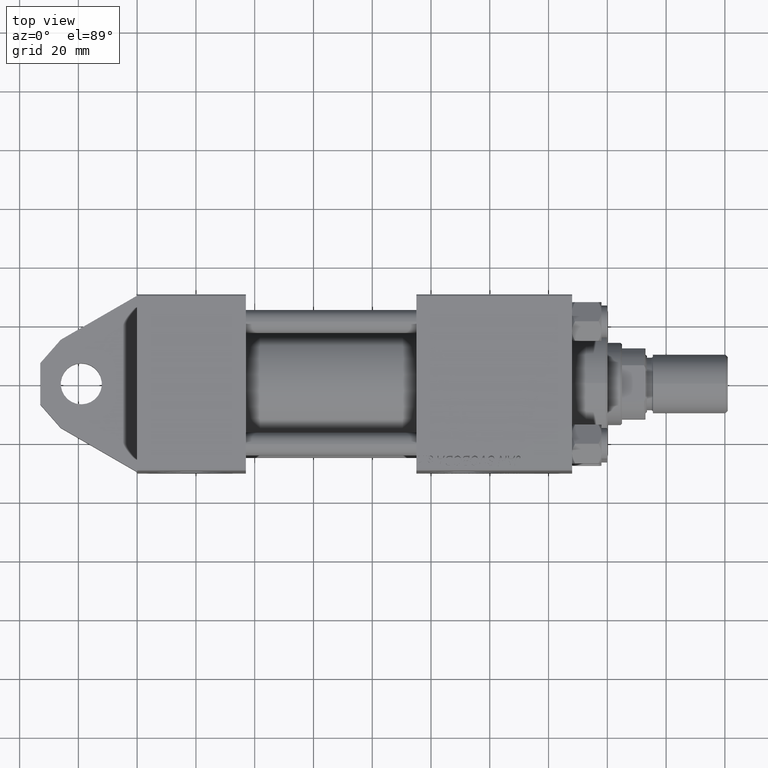
[diagram: clean part render]
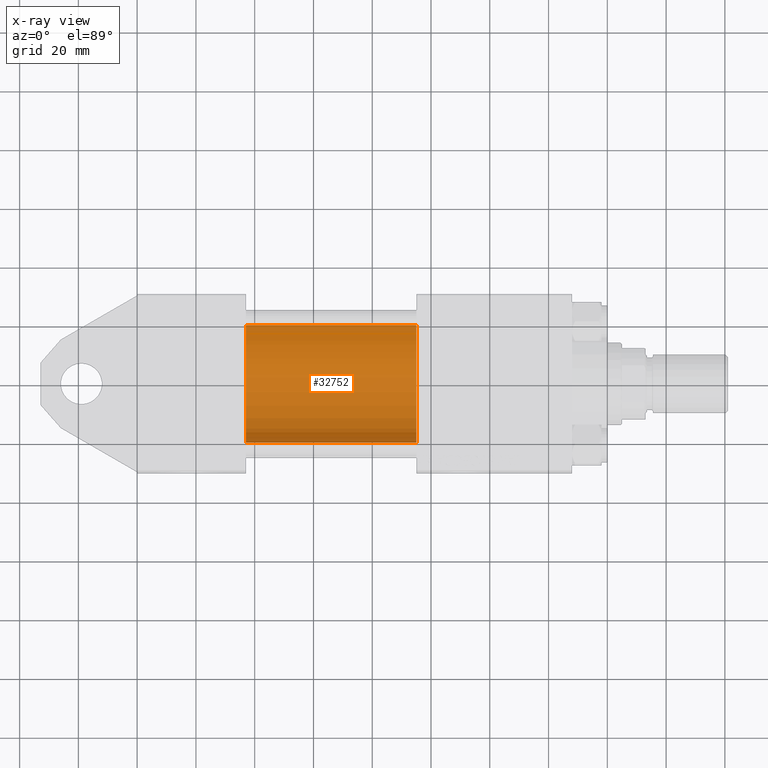
[diagram: x-ray — body ghosted, one internal face saturated and labeled with its STEP entity id]
A machine part, top view, then the same camera in x-ray: the body is ghosted and one INTERNAL B-rep face — a face not visible from any outside direction — is saturated and labeled: STEP entity #32752.
In plain terms, the highlighted cylindrical surface (partial cylindrical patch) has radius 20 mm, axis along (-1, -0, 0).
Its self-contained STEP definition (entity closure, byte-faithful):
#1484 = DIRECTION ( 'NONE',  ( 0.000000000000000000, 0.000000000000000000, -1.000000000000000000 ) ) ;
#2378 = CYLINDRICAL_SURFACE ( 'NONE', #36309, 20.00000000000000000 ) ;
#5578 = VERTEX_POINT ( 'NONE', #8828 ) ;
#5732 = DIRECTION ( 'NONE',  ( 1.000000000000000000, 0.000000000000000000, 0.000000000000000000 ) ) ;
#6742 = DIRECTION ( 'NONE',  ( 0.000000000000000000, 0.000000000000000000, -1.000000000000000000 ) ) ;
#8023 = DIRECTION ( 'NONE',  ( -1.000000000000000000, -0.000000000000000000, -0.000000000000000000 ) ) ;
#8828 = CARTESIAN_POINT ( 'NONE',  ( 95.00000000000000000, -2.602085213965210642E-15, 20.00000000000000000 ) ) ;
#9439 = DIRECTION ( 'NONE',  ( -1.000000000000000000, -0.000000000000000000, -0.000000000000000000 ) ) ;
#10143 = ORIENTED_EDGE ( 'NONE', *, *, #20872, .T. ) ;
#11928 = AXIS2_PLACEMENT_3D ( 'NONE', #23090, #5732, #1484 ) ;
#12740 = DIRECTION ( 'NONE',  ( 0.000000000000000000, 0.000000000000000000, 1.000000000000000000 ) ) ;
#14470 = CARTESIAN_POINT ( 'NONE',  ( 37.00000000000000000, -2.602085213965210642E-15, 0.000000000000000000 ) ) ;
#19175 = EDGE_CURVE ( 'NONE', #28516, #40917, #29901, .T. ) ;
#19994 = CARTESIAN_POINT ( 'NONE',  ( 95.00000000000000000, -2.602085213965210642E-15, 0.000000000000000000 ) ) ;
#20243 = AXIS2_PLACEMENT_3D ( 'NONE', #14470, #21049, #6742 ) ;
#20872 = EDGE_CURVE ( 'NONE', #5578, #28516, #32154, .T. ) ;
#21049 = DIRECTION ( 'NONE',  ( 1.000000000000000000, 0.000000000000000000, 0.000000000000000000 ) ) ;
#23090 = CARTESIAN_POINT ( 'NONE',  ( 95.00000000000000000, -2.602085213965210642E-15, 0.000000000000000000 ) ) ;
#23142 = VECTOR ( 'NONE', #44780, 1000.000000000000000 ) ;
#24187 = ORIENTED_EDGE ( 'NONE', *, *, #28535, .F. ) ;
#25217 = EDGE_LOOP ( 'NONE', ( #10143, #37916, #44966, #24187 ) ) ;
#25631 = VECTOR ( 'NONE', #8023, 1000.000000000000000 ) ;
#26605 = CARTESIAN_POINT ( 'NONE',  ( 95.00000000000000000, -1.527916156705046464E-16, -20.00000000000000000 ) ) ;
#28516 = VERTEX_POINT ( 'NONE', #44733 ) ;
#28535 = EDGE_CURVE ( 'NONE', #5578, #39113, #40950, .T. ) ;
#29852 = CARTESIAN_POINT ( 'NONE',  ( 95.00000000000000000, -2.602085213965210642E-15, 20.00000000000000000 ) ) ;
#29901 = LINE ( 'NONE', #26605, #23142 ) ;
#31462 = CIRCLE ( 'NONE', #20243, 20.00000000000000000 ) ;
#31565 = CARTESIAN_POINT ( 'NONE',  ( 37.00000000000000000, -1.527916156705046464E-16, -20.00000000000000000 ) ) ;
#32154 = CIRCLE ( 'NONE', #11928, 20.00000000000000000 ) ;
#32752 = ADVANCED_FACE ( 'NONE', ( #37640 ), #2378, .F. ) ;
#36309 = AXIS2_PLACEMENT_3D ( 'NONE', #19994, #9439, #12740 ) ;
#36340 = CARTESIAN_POINT ( 'NONE',  ( 37.00000000000000000, -2.602085213965210642E-15, 20.00000000000000000 ) ) ;
#37640 = FACE_OUTER_BOUND ( 'NONE', #25217, .T. ) ;
#37916 = ORIENTED_EDGE ( 'NONE', *, *, #19175, .T. ) ;
#39113 = VERTEX_POINT ( 'NONE', #36340 ) ;
#40917 = VERTEX_POINT ( 'NONE', #31565 ) ;
#40950 = LINE ( 'NONE', #29852, #25631 ) ;
#44261 = EDGE_CURVE ( 'NONE', #39113, #40917, #31462, .T. ) ;
#44733 = CARTESIAN_POINT ( 'NONE',  ( 95.00000000000000000, -1.527916156705046464E-16, -20.00000000000000000 ) ) ;
#44780 = DIRECTION ( 'NONE',  ( -1.000000000000000000, -0.000000000000000000, -0.000000000000000000 ) ) ;
#44966 = ORIENTED_EDGE ( 'NONE', *, *, #44261, .F. ) ;